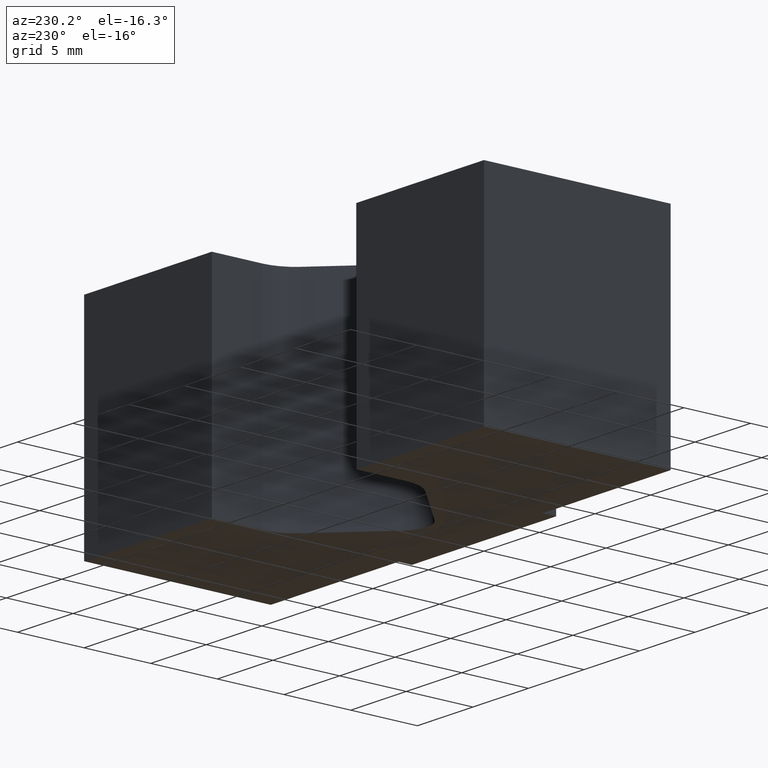
[diagram: clean part render]
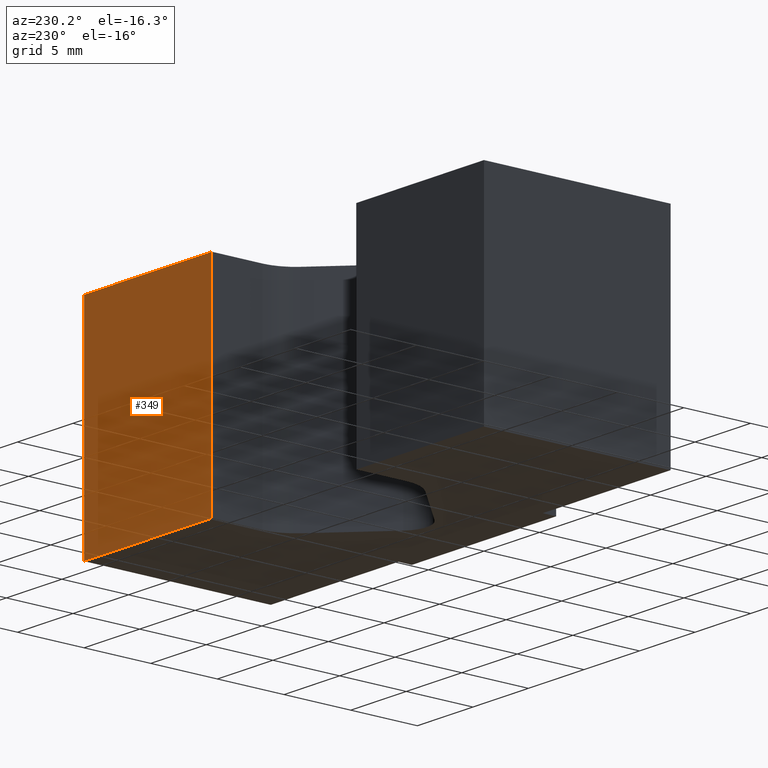
[diagram: same view with one face highlighted and labeled with its STEP entity id]
A machine part, auxiliary view. The second image highlights one B-rep face of the part: STEP entity #349.
In plain terms, the highlighted planar face has unit normal (0, 1, 0).
Its self-contained STEP definition (entity closure, byte-faithful):
#32=FACE_OUTER_BOUND('',#50,.T.);
#50=EDGE_LOOP('',(#292,#293,#294,#295));
#72=LINE('',#525,#114);
#96=LINE('',#579,#138);
#97=LINE('',#582,#139);
#98=LINE('',#583,#140);
#114=VECTOR('',#422,10.);
#138=VECTOR('',#478,10.);
#139=VECTOR('',#481,10.);
#140=VECTOR('',#482,10.);
#145=VERTEX_POINT('',#495);
#159=VERTEX_POINT('',#523);
#173=VERTEX_POINT('',#577);
#174=VERTEX_POINT('',#581);
#191=EDGE_CURVE('',#145,#159,#72,.T.);
#218=EDGE_CURVE('',#173,#159,#96,.T.);
#219=EDGE_CURVE('',#173,#174,#97,.T.);
#220=EDGE_CURVE('',#174,#145,#98,.T.);
#292=ORIENTED_EDGE('',*,*,#219,.T.);
#293=ORIENTED_EDGE('',*,*,#220,.T.);
#294=ORIENTED_EDGE('',*,*,#191,.T.);
#295=ORIENTED_EDGE('',*,*,#218,.F.);
#331=PLANE('',#396);
#349=ADVANCED_FACE('',(#32),#331,.T.);
#396=AXIS2_PLACEMENT_3D('',#580,#479,#480);
#422=DIRECTION('',(-1.,0.,0.));
#478=DIRECTION('',(0.,0.,-1.));
#479=DIRECTION('center_axis',(0.,1.,0.));
#480=DIRECTION('ref_axis',(0.,0.,1.));
#481=DIRECTION('',(1.,0.,0.));
#482=DIRECTION('',(0.,0.,-1.));
#495=CARTESIAN_POINT('',(18.,15.,-8.));
#523=CARTESIAN_POINT('',(6.5,15.,-8.));
#525=CARTESIAN_POINT('',(6.5,15.,-8.));
#577=CARTESIAN_POINT('',(6.5,15.,8.));
#579=CARTESIAN_POINT('',(6.5,15.,0.));
#580=CARTESIAN_POINT('Origin',(6.5,15.,0.));
#581=CARTESIAN_POINT('',(18.,15.,8.));
#582=CARTESIAN_POINT('',(6.5,15.,8.));
#583=CARTESIAN_POINT('',(18.,15.,0.));